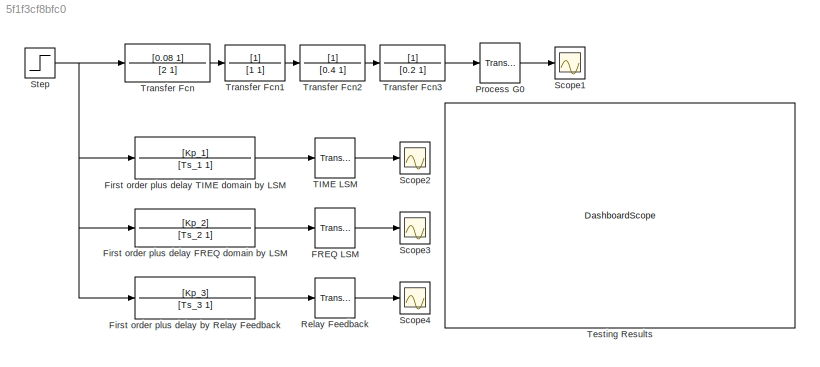
MODEL slx_5f1f3cf8bfc0
KIND model
CONFIG AbsTol = auto
CONFIG EnableMultiTasking = off
CONFIG FixedStep = auto
CONFIG MaxStep = auto
CONFIG MinStep = auto
CONFIG RelTol = 1e-3
CONFIG SampleTimeConstraint = Unconstrained
CONFIG Solver = VariableStepAuto
CONFIG SolverName = VariableStepAuto
CONFIG StartTime = 0.0
CONFIG StopTime = 50
BLOCK [TransportDelay] FREQ LSM
  DelayTime = L_2
  Ports = [1, 1]
BLOCK [TransferFcn] First order plus delay FREQ domain by LSM
  AbsoluteTolerance = 1
  Denominator = [Ts_2 1]
  Numerator = [Kp_2]
BLOCK [TransferFcn] First order plus delay TIME domain by LSM
  AbsoluteTolerance = 1
  Denominator = [Ts_1 1]
  Numerator = [Kp_1]
BLOCK [TransferFcn] First order plus delay by Relay Feedback
  AbsoluteTolerance = 1
  Denominator = [Ts_3 1]
  Numerator = [Kp_3]
BLOCK [TransportDelay] Process G0
  DelayTime = 3
  Ports = [1, 1]
BLOCK [TransportDelay] Relay Feedback
  DelayTime = L_3
  Ports = [1, 1]
BLOCK [Scope] Scope1
  Floating = off
  NumInputPorts = 1
  Ports = [1]
  ScopeSpecificationString = Simulink.scopes.TimeScopeBlockCfg('CurrentConfiguration', extmgr.ConfigurationSet(extmgr.Configuration('Core','General UI',true,'FigureColor',[0.905882352941176 0.905882352941176 0.905882352941176]),extmgr.Configuration('Core','Source UI',true),extmgr.Configuration('Sources','WiredSimulink',true),extmgr.Configuration('Visuals','Time Domain',true,'SerializedDisplays',{struct('MinYLimReal','-0.12489...<+1893ch>
BLOCK [Scope] Scope2
  Floating = off
  NumInputPorts = 1
  Ports = [1]
  ScopeSpecificationString = Simulink.scopes.TimeScopeBlockCfg('CurrentConfiguration', extmgr.ConfigurationSet(extmgr.Configuration('Core','General UI',true,'FigureColor',[0.905882352941176 0.905882352941176 0.905882352941176]),extmgr.Configuration('Core','Source UI',true),extmgr.Configuration('Sources','WiredSimulink',true,'DataLoggingVariableName','ScopeData2'),extmgr.Configuration('Visuals','Time Domain',true,'SerializedDi...<+1933ch>
BLOCK [Scope] Scope3
  Floating = off
  NumInputPorts = 1
  Ports = [1]
  ScopeSpecificationString = Simulink.scopes.TimeScopeBlockCfg('CurrentConfiguration', extmgr.ConfigurationSet(extmgr.Configuration('Core','General UI',true,'FigureColor',[0.905882352941176 0.905882352941176 0.905882352941176]),extmgr.Configuration('Core','Source UI',true),extmgr.Configuration('Sources','WiredSimulink',true,'DataLoggingVariableName','ScopeData1'),extmgr.Configuration('Visuals','Time Domain',true,'SerializedDi...<+1933ch>
BLOCK [Scope] Scope4
  Floating = off
  NumInputPorts = 1
  Ports = [1]
  ScopeSpecificationString = Simulink.scopes.TimeScopeBlockCfg('CurrentConfiguration', extmgr.ConfigurationSet(extmgr.Configuration('Core','General UI',true,'FigureColor',[0.905882352941176 0.905882352941176 0.905882352941176]),extmgr.Configuration('Core','Source UI',true),extmgr.Configuration('Sources','WiredSimulink',true,'DataLoggingVariableName','ScopeData1'),extmgr.Configuration('Visuals','Time Domain',true,'SerializedDi...<+1933ch>
BLOCK [Step] Step
  SampleTime = 0
BLOCK [TransportDelay] TIME LSM
  DelayTime = L_1
  Ports = [1, 1]
BLOCK [DashboardScope] Testing Results
BLOCK [TransferFcn] Transfer Fcn
  Denominator = [2 1]
  Numerator = [0.08 1]
BLOCK [TransferFcn] Transfer Fcn1
  Denominator = [1 1]
BLOCK [TransferFcn] Transfer Fcn2
  Denominator = [0.4 1]
BLOCK [TransferFcn] Transfer Fcn3
  Denominator = [0.2 1]
LINE FREQ LSM:1 -> Scope3:1
LINE First order plus delay FREQ domain by LSM:1 -> FREQ LSM:1
LINE First order plus delay TIME domain by LSM:1 -> TIME LSM:1
LINE First order plus delay by Relay Feedback:1 -> Relay Feedback:1
LINE Process G0:1 -> Scope1:1
LINE Relay Feedback:1 -> Scope4:1
NET Step:1 -> First order plus delay FREQ domain by LSM:1, First order plus delay TIME domain by LSM:1, First order plus delay by Relay Feedback:1, Transfer Fcn:1
LINE TIME LSM:1 -> Scope2:1
LINE Transfer Fcn1:1 -> Transfer Fcn2:1
LINE Transfer Fcn2:1 -> Transfer Fcn3:1
LINE Transfer Fcn3:1 -> Process G0:1
LINE Transfer Fcn:1 -> Transfer Fcn1:1
note: NET lines group one-source signal fan-out (src -> all destinations, sorted); 1:1 wires keep LINE
